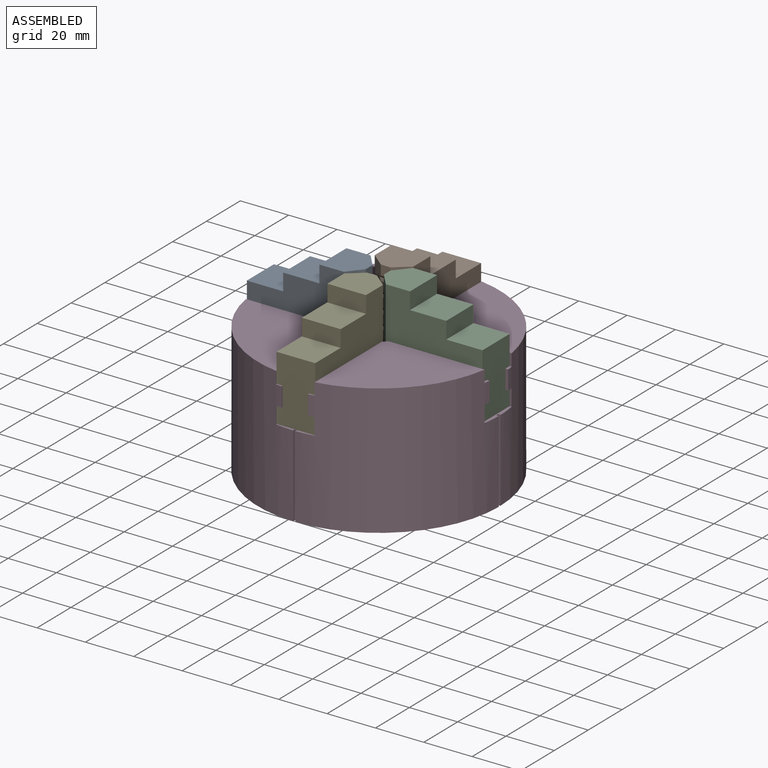
[diagram: assembled view]
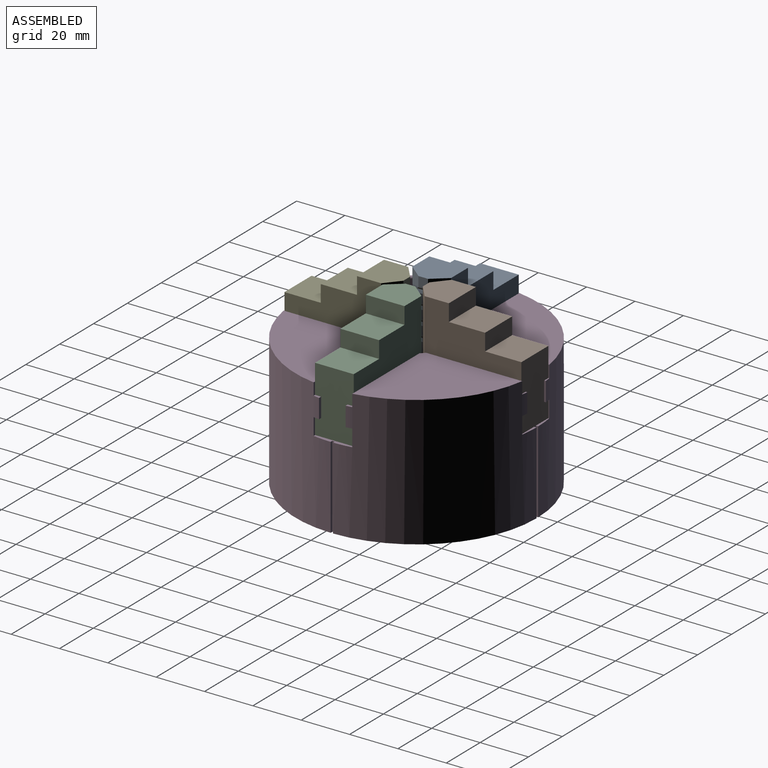
[diagram: assembled view, second angle]
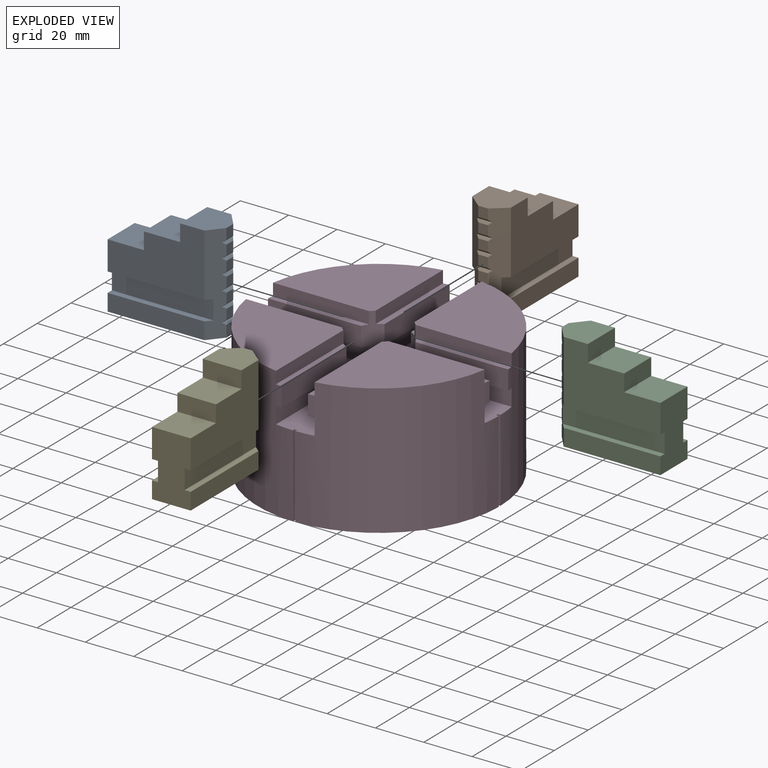
[diagram: exploded view]
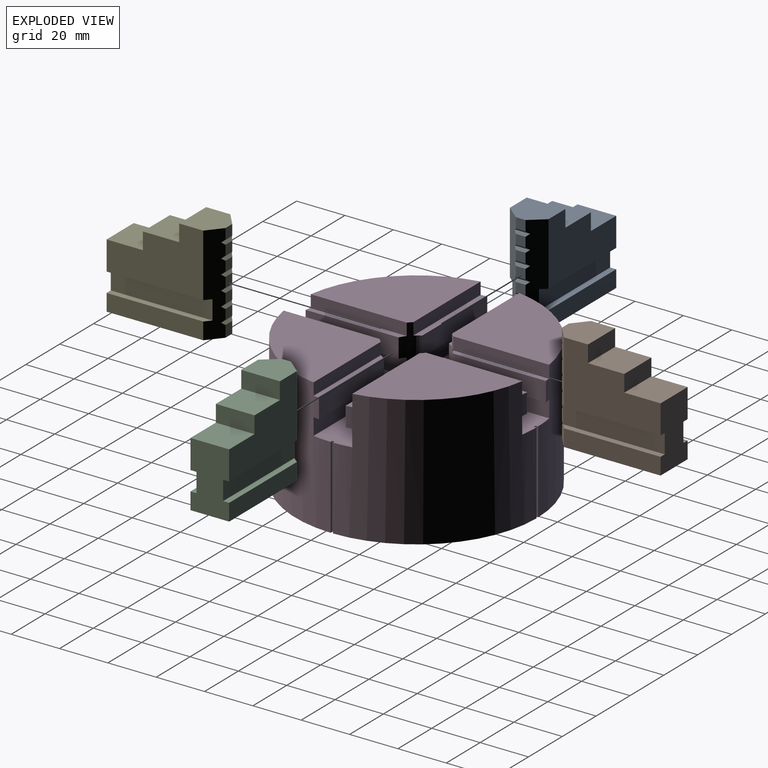
[diagram: exploded view, second angle]
ASSEMBLY  parts=5 mates=4
PART A: 38 faces, bbox 16x45x41 mm
  f0: plane 40x26mm, normal (1,0,0), area 725mm2, adj f3,f10,f13,f14,f15,f16,f17,f33
  f1: plane 40x26mm, normal (-1,0,0), area 725mm2, adj f2,f3,f13,f14,f15,f16,f17,f36
  f2: plane 41x6mm, normal (-0.64,-0.77,0), area 284.8mm2, adj f1,f4,f5,f6,f7,f8,f9,f11
  f3: plane 27x16mm, normal (0,1,0), area 392mm2, adj f0,f1,f12,f14,f18,f19,f32,f33
  f4: plane 4.25x4mm, normal (0,-1,0), area 17mm2, adj f2,f10,f13,f31
  f5: plane 4x4mm, normal (0,-1,0), area 16mm2, adj f2,f10,f29,f30
  f6: plane 4x4mm, normal (0,-1,0), area 16mm2, adj f2,f10,f27,f28
  f7: plane 4x4mm, normal (0,-1,0), area 16mm2, adj f2,f10,f25,f26
  f8: plane 4x4mm, normal (0,-1,0), area 16mm2, adj f2,f10,f23,f24
  f9: plane 4x4mm, normal (0,-1,0), area 16mm2, adj f2,f10,f21,f22
  f10: plane 41x6mm, normal (0.64,-0.77,0), area 284.8mm2, adj f0,f4,f5,f6,f7,f8,f9,f11
  f11: plane 4.75x4mm, normal (0,-1,0), area 19mm2, adj f2,f10,f12,f20
  f12: plane 45x16mm, normal (0,0,-1), area 690mm2, adj f2,f3,f10,f11,f18,f19
  f13: plane 16x15mm, normal (0,0,1), area 210mm2, adj f0,f1,f2,f4,f10,f17
  f14: plane 16x15mm, normal (0,0,1), area 240mm2, adj f0,f1,f3,f15
  f15: plane 16x7mm, normal (0,1,0), area 112mm2, adj f0,f1,f14,f16
  f16: plane 16x15mm, normal (0,0,1), area 240mm2, adj f0,f1,f15,f17
  f17: plane 16x7mm, normal (0,1,0), area 112mm2, adj f0,f1,f13,f16
  f18: plane 40x7mm, normal (1,0,0), area 280mm2, adj f3,f10,f12,f34
  f19: plane 40x7mm, normal (-1,0,0), area 280mm2, adj f2,f3,f12,f35
  f20: plane 6.4x1mm, normal (0,-0.71,0.71), area 7.4mm2, adj f2,f10,f11,f21
  f21: plane 6.4x1mm, normal (0,-0.71,-0.71), area 7.4mm2, adj f2,f9,f10,f20
  f22: plane 6.4x1mm, normal (0,-0.71,0.71), area 7.4mm2, adj f2,f9,f10,f23
  f23: plane 6.4x1mm, normal (0,-0.71,-0.71), area 7.4mm2, adj f2,f8,f10,f22
  f24: plane 6.4x1mm, normal (0,-0.71,0.71), area 7.4mm2, adj f2,f8,f10,f25
  f25: plane 6.4x1mm, normal (0,-0.71,-0.71), area 7.4mm2, adj f2,f7,f10,f24
  f26: plane 6.4x1mm, normal (0,-0.71,0.71), area 7.4mm2, adj f2,f7,f10,f27
  f27: plane 6.4x1mm, normal (0,-0.71,-0.71), area 7.4mm2, adj f2,f6,f10,f26
  f28: plane 6.4x1mm, normal (0,-0.71,0.71), area 7.4mm2, adj f2,f6,f10,f29
  f29: plane 6.4x1mm, normal (0,-0.71,-0.71), area 7.4mm2, adj f2,f5,f10,f28
  f30: plane 6.4x1mm, normal (0,-0.71,0.71), area 7.4mm2, adj f2,f5,f10,f31
  f31: plane 6.4x1mm, normal (0,-0.71,-0.71), area 7.4mm2, adj f2,f4,f10,f30
  f32: plane 42.08x8mm, normal (1,0,0), area 336.7mm2, adj f3,f10,f33,f34
  f33: plane 42.08x2.5mm, normal (0,0,-1), area 102.6mm2, adj f0,f3,f10,f32
  f34: plane 42.08x2.5mm, normal (0,0,1), area 102.6mm2, adj f3,f10,f18,f32
  f35: plane 42.08x2.5mm, normal (0,0,1), area 102.6mm2, adj f2,f3,f19,f37
  f36: plane 42.08x2.5mm, normal (0,0,-1), area 102.6mm2, adj f1,f2,f3,f37
  f37: plane 42.08x8mm, normal (-1,0,0), area 336.7mm2, adj f2,f3,f35,f36
PART B: same geometry as A
PART C: same geometry as A
PART D: 76 faces, bbox 100x100x54 mm
  f0: cylinder r=12.5mm len=50.5mm, axis (0,0,-1), area 2768.4mm2, adj f1,f2,f3,f8,f9,f10,f11,f12
  f1: plane 40.39x16mm, normal (0,0,1), area 610.2mm2, adj f0,f4,f5,f10,f19,f60,f61,f62
  f2: plane 40.39x16mm, normal (0,0,1), area 610.2mm2, adj f0,f5,f6,f21,f30,f57,f58,f59
  f3: plane 40.39x16mm, normal (0,0,1), area 610.2mm2, adj f0,f6,f32,f41,f43,f63,f64,f65
  f4: cylinder r=50mm len=54mm, axis (0,0,-1), area 3926.1mm2, adj f1,f7,f8,f9,f15,f16,f17,f18
  f5: cylinder r=50mm len=54mm, axis (0,0,-1), area 3926.1mm2, adj f1,f2,f7,f10,f11,f12,f13,f14
  f6: cylinder r=50mm len=54mm, axis (0,0,-1), area 3926.2mm2, adj f2,f3,f7,f21,f22,f23,f24,f25
  f7: plane 100x100mm, normal (0,0,-1), area 3577.4mm2, adj f4,f5,f6,f43,f54,f55,f56,f57
  f8: plane 40.39x16mm, normal (0,0,1), area 610.2mm2, adj f0,f4,f43,f44,f51,f54,f55,f56
  f9: plane 41.36x41.36mm, normal (0,0,1), area 1229.6mm2, adj f0,f4,f15,f52
  f10: plane 39.75x7mm, normal (0,1,0), area 278.3mm2, adj f0,f1,f5,f11
  f11: plane 40.09x2.5mm, normal (0,0,-1), area 97.6mm2, adj f0,f5,f10,f12
  f12: plane 38.47x8mm, normal (0,1,0), area 307.8mm2, adj f0,f5,f11,f13
  f13: plane 40.09x2.5mm, normal (0,0,1), area 97.6mm2, adj f0,f5,f12,f14
  f14: plane 39.75x5mm, normal (0,1,0), area 198.8mm2, adj f0,f5,f13,f20
  f15: plane 39.75x5mm, normal (0,-1,0), area 198.8mm2, adj f0,f4,f9,f16
  f16: plane 40.09x2.5mm, normal (0,0,1), area 97.6mm2, adj f0,f4,f15,f17
  f17: plane 38.47x8mm, normal (0,-1,0), area 307.8mm2, adj f0,f4,f16,f18
  f18: plane 40.09x2.5mm, normal (0,0,-1), area 97.6mm2, adj f0,f4,f17,f19
  f19: plane 39.75x7mm, normal (0,-1,0), area 278.3mm2, adj f0,f1,f4,f18
  f20: plane 41.36x41.36mm, normal (0,0,1), area 1229.6mm2, adj f0,f5,f14,f26
  f21: plane 39.75x7mm, normal (1,0,0), area 278.3mm2, adj f0,f2,f6,f22
  f22: plane 40.09x2.5mm, normal (0,0,-1), area 97.6mm2, adj f0,f6,f21,f23
  f23: plane 38.47x8mm, normal (1,0,0), area 307.8mm2, adj f0,f6,f22,f24
  f24: plane 40.09x2.5mm, normal (0,0,1), area 97.6mm2, adj f0,f6,f23,f25
  f25: plane 39.75x5mm, normal (1,0,0), area 198.8mm2, adj f0,f6,f24,f31
  f26: plane 39.75x5mm, normal (-1,0,0), area 198.8mm2, adj f0,f5,f20,f27
  f27: plane 40.09x2.5mm, normal (0,0,1), area 97.6mm2, adj f0,f5,f26,f28
  f28: plane 38.47x8mm, normal (-1,0,0), area 307.8mm2, adj f0,f5,f27,f29
  f29: plane 40.09x2.5mm, normal (0,0,-1), area 97.6mm2, adj f0,f5,f28,f30
  f30: plane 39.75x7mm, normal (-1,0,0), area 278.3mm2, adj f0,f2,f5,f29
  f31: plane 41.36x41.36mm, normal (0,0,1), area 1229.6mm2, adj f0,f6,f25,f37
  f32: plane 39.75x7mm, normal (0,-1,0), area 278.3mm2, adj f0,f3,f33,f43
  f33: plane 40.09x2.5mm, normal (0,0,-1), area 97.6mm2, adj f0,f32,f34,f43
  f34: plane 38.47x8mm, normal (0,-1,0), area 307.8mm2, adj f0,f33,f35,f43
  f35: plane 40.09x2.5mm, normal (0,0,1), area 97.6mm2, adj f0,f34,f36,f43
  f36: plane 39.75x5mm, normal (0,-1,0), area 198.8mm2, adj f0,f35,f42,f43
  f37: plane 39.75x5mm, normal (0,1,0), area 198.8mm2, adj f0,f6,f31,f38
  f38: plane 40.09x2.5mm, normal (0,0,1), area 97.6mm2, adj f0,f6,f37,f39
  f39: plane 38.47x8mm, normal (0,1,0), area 307.8mm2, adj f0,f6,f38,f40
  f40: plane 40.09x2.5mm, normal (0,0,-1), area 97.6mm2, adj f0,f6,f39,f41
  f41: plane 39.75x7mm, normal (0,1,0), area 278.3mm2, adj f0,f3,f6,f40
  f42: plane 41.36x41.36mm, normal (0,0,1), area 1229.6mm2, adj f0,f36,f43,f53
  f43: cylinder r=50mm len=54mm, axis (0,0,-1), area 3926.1mm2, adj f3,f7,f8,f32,f33,f34,f35,f36
  f44: plane 39.75x7mm, normal (-1,0,0), area 278.3mm2, adj f0,f4,f8,f45
  f45: plane 40.09x2.5mm, normal (0,0,-1), area 97.6mm2, adj f0,f4,f44,f46
  f46: plane 38.47x8mm, normal (-1,0,0), area 307.8mm2, adj f0,f4,f45,f47
  f47: plane 40.09x2.5mm, normal (0,0,1), area 97.6mm2, adj f0,f4,f46,f52
  f48: plane 40.09x2.5mm, normal (0,0,1), area 97.6mm2, adj f0,f43,f49,f53
  f49: plane 38.47x8mm, normal (1,0,0), area 307.8mm2, adj f0,f43,f48,f50
  f50: plane 40.09x2.5mm, normal (0,0,-1), area 97.6mm2, adj f0,f43,f49,f51
  f51: plane 39.75x7mm, normal (1,0,0), area 278.3mm2, adj f0,f8,f43,f50
  f52: plane 39.75x5mm, normal (-1,0,0), area 198.8mm2, adj f0,f4,f9,f47
  f53: plane 39.75x5mm, normal (1,0,0), area 198.8mm2, adj f0,f42,f43,f48
  f54: plane 34x1mm, normal (-1,0,0), area 33.9mm2, adj f4,f7,f8,f56
  f55: plane 34x1mm, normal (1,0,0), area 33.9mm2, adj f7,f8,f43,f56
  f56: plane 34x1mm, normal (0,1,0), area 34mm2, adj f7,f8,f54,f55
  f57: plane 34x1mm, normal (-1,0,0), area 34mm2, adj f2,f5,f7,f59
  f58: plane 34x1mm, normal (1,0,0), area 34mm2, adj f2,f6,f7,f59
  f59: plane 34x1mm, normal (0,-1,0), area 34mm2, adj f2,f7,f57,f58
  f60: plane 34x1mm, normal (0,1,0), area 33.9mm2, adj f1,f5,f7,f62
  f61: plane 34x1mm, normal (0,-1,0), area 33.9mm2, adj f1,f4,f7,f62
  f62: plane 34x1mm, normal (1,0,0), area 34mm2, adj f1,f7,f60,f61
  f63: plane 34x1mm, normal (0,-1,0), area 33.9mm2, adj f3,f7,f43,f65
  f64: plane 34x1mm, normal (0,1,0), area 33.9mm2, adj f3,f6,f7,f65
  f65: plane 34x1mm, normal (-1,0,0), area 34mm2, adj f3,f7,f63,f64
  f66: cylinder r=36mm len=72mm, axis (0,0,-1), area 791.7mm2, adj f7,f67
  f67: plane 72x72mm, normal (0,0,-1), area 3580.6mm2, adj f0,f66
  f68: cylinder r=4mm len=25mm, axis (0,0,-1), area 628.3mm2, adj f7,f69
  f69: plane 8x8mm, normal (0,0,-1), area 50.3mm2, adj f68
  f70: cylinder r=4mm len=25mm, axis (0,0,-1), area 628.3mm2, adj f7,f71
  f71: plane 8x8mm, normal (0,0,-1), area 50.3mm2, adj f70
  f72: cylinder r=4mm len=25mm, axis (0,0,-1), area 628.3mm2, adj f7,f73
  f73: plane 8x8mm, normal (0,0,-1), area 50.3mm2, adj f72
  f74: cylinder r=4mm len=25mm, axis (0,0,-1), area 628.3mm2, adj f7,f75
  f75: plane 8x8mm, normal (0,0,-1), area 50.3mm2, adj f74
PART E: same geometry as A
PLACE A rot(axis=(0,0,1),90deg) t=(1.5,-2.5,34)mm
PLACE B rot(axis=(0,0,1),0deg) t=(-2.49,9.5,34)mm
PLACE C rot(axis=(0,0,-1),90deg) t=(9,13.5,34)mm
PLACE D rot(axis=(0,0,1),180deg) t=(5.5,5.5,0)mm
PLACE E rot(axis=(0,0,1),180deg) t=(13.5,1.5,34)mm
MATE slider A.f3 <-> D.f62  axis (-1,0,0) through (-43.5,5.5,34)mm
MATE slider E.f3 <-> D.f56  axis (0,-1,0) through (5.5,-43.5,34)mm
MATE slider B.f3 <-> D.f59  axis (0,1,0) through (5.5,54.5,34)mm
MATE slider C.f3 <-> D.f65  axis (1,0,0) through (54,5.5,34)mm
